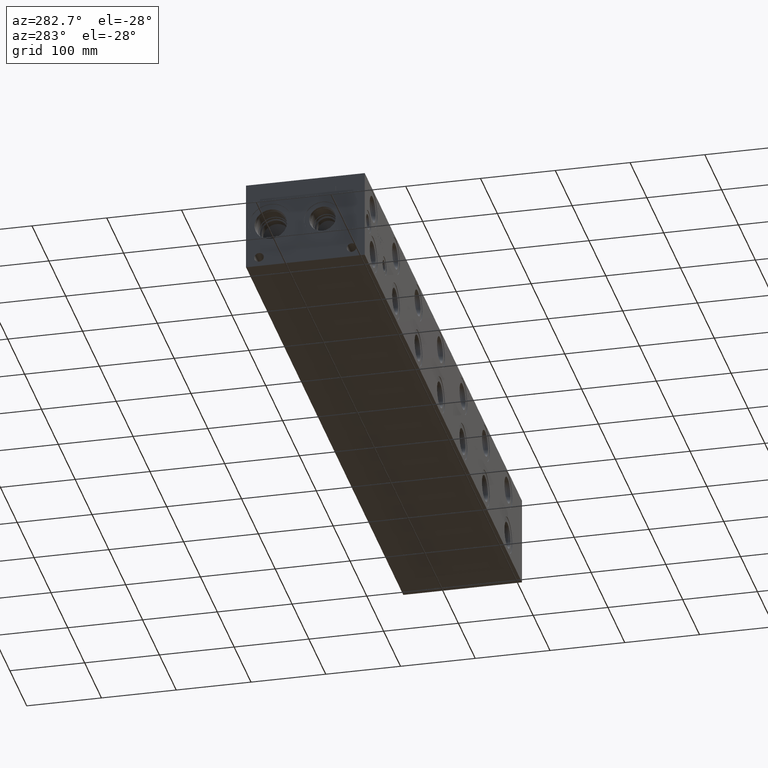
[diagram: clean part render]
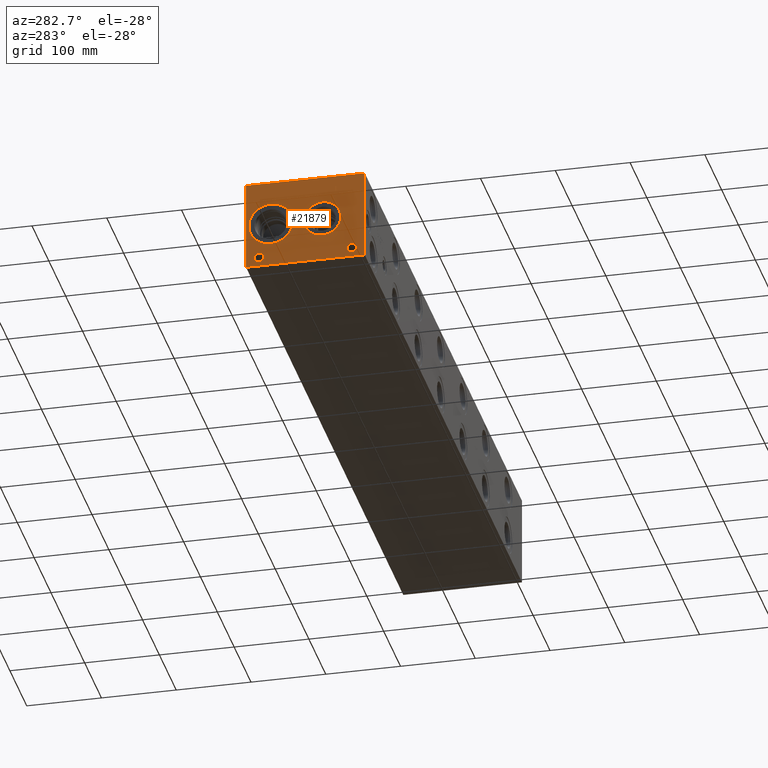
[diagram: same view with one face highlighted and labeled with its STEP entity id]
A machine part, auxiliary view. The second image highlights one B-rep face of the part: STEP entity #21879.
In plain terms, the highlighted planar face has unit normal (-1, 0, 0).
Its self-contained STEP definition (entity closure, byte-faithful):
#480=CIRCLE('',#23113,6.35);
#481=CIRCLE('',#23114,6.35);
#482=CIRCLE('',#23115,6.35);
#483=CIRCLE('',#23116,6.35);
#484=CIRCLE('',#23117,24.5618);
#485=CIRCLE('',#23118,24.5618);
#486=CIRCLE('',#23119,29.2862);
#487=CIRCLE('',#23120,29.2862);
#1406=FACE_BOUND('',#3632,.T.);
#1407=FACE_BOUND('',#3633,.T.);
#1408=FACE_BOUND('',#3634,.T.);
#1409=FACE_BOUND('',#3635,.T.);
#1410=FACE_BOUND('',#3636,.T.);
#1411=FACE_BOUND('',#3637,.T.);
#1695=B_SPLINE_CURVE_WITH_KNOTS('',2,(#31122,#31123,#31124,#31125),
 .UNSPECIFIED.,.F.,.F.,(3,1,3),(0.,1.,2.),.UNSPECIFIED.);
#1697=B_SPLINE_CURVE_WITH_KNOTS('',2,(#31143,#31144,#31145,#31146),
 .UNSPECIFIED.,.F.,.F.,(3,1,3),(0.,1.,2.),.UNSPECIFIED.);
#1699=B_SPLINE_CURVE_WITH_KNOTS('',2,(#31192,#31193,#31194,#31195),
 .UNSPECIFIED.,.F.,.F.,(3,1,3),(0.,1.,2.),.UNSPECIFIED.);
#1701=B_SPLINE_CURVE_WITH_KNOTS('',2,(#31210,#31211,#31212,#31213),
 .UNSPECIFIED.,.F.,.F.,(3,1,3),(0.,1.,2.),.UNSPECIFIED.);
#2396=FACE_OUTER_BOUND('',#3631,.T.);
#3631=EDGE_LOOP('',(#14483,#14484,#14485,#14486));
#3632=EDGE_LOOP('',(#14487,#14488,#14489,#14490,#14491,#14492,#14493,#14494));
#3633=EDGE_LOOP('',(#14495,#14496));
#3634=EDGE_LOOP('',(#14497,#14498));
#3635=EDGE_LOOP('',(#14499,#14500));
#3636=EDGE_LOOP('',(#14501,#14502));
#3637=EDGE_LOOP('',(#14503,#14504,#14505,#14506,#14507,#14508,#14509,#14510,
#14511));
#5130=LINE('',#30972,#6967);
#5134=LINE('',#30980,#6971);
#5137=LINE('',#30986,#6974);
#5140=LINE('',#30992,#6977);
#5143=LINE('',#30998,#6980);
#5146=LINE('',#31004,#6983);
#5149=LINE('',#31010,#6986);
#5152=LINE('',#31015,#6989);
#5170=LINE('',#31155,#7007);
#5173=LINE('',#31161,#7010);
#5176=LINE('',#31167,#7013);
#5179=LINE('',#31173,#7016);
#5182=LINE('',#31179,#7019);
#5186=LINE('',#31222,#7023);
#5187=LINE('',#31224,#7024);
#5188=LINE('',#31226,#7025);
#5189=LINE('',#31227,#7026);
#6967=VECTOR('',#25114,10.);
#6971=VECTOR('',#25120,10.);
#6974=VECTOR('',#25125,10.);
#6977=VECTOR('',#25130,10.);
#6980=VECTOR('',#25135,10.);
#6983=VECTOR('',#25140,10.);
#6986=VECTOR('',#25145,10.);
#6989=VECTOR('',#25150,10.);
#7007=VECTOR('',#25178,10.);
#7010=VECTOR('',#25183,10.);
#7013=VECTOR('',#25188,10.);
#7016=VECTOR('',#25193,10.);
#7019=VECTOR('',#25198,10.);
#7023=VECTOR('',#25206,10.);
#7024=VECTOR('',#25207,10.);
#7025=VECTOR('',#25208,10.);
#7026=VECTOR('',#25209,10.);
#8804=VERTEX_POINT('',#30970);
#8805=VERTEX_POINT('',#30971);
#8808=VERTEX_POINT('',#30979);
#8810=VERTEX_POINT('',#30985);
#8812=VERTEX_POINT('',#30991);
#8814=VERTEX_POINT('',#30997);
#8816=VERTEX_POINT('',#31003);
#8818=VERTEX_POINT('',#31009);
#8834=VERTEX_POINT('',#31120);
#8835=VERTEX_POINT('',#31121);
#8838=VERTEX_POINT('',#31142);
#8840=VERTEX_POINT('',#31154);
#8842=VERTEX_POINT('',#31160);
#8844=VERTEX_POINT('',#31166);
#8846=VERTEX_POINT('',#31172);
#8848=VERTEX_POINT('',#31178);
#8850=VERTEX_POINT('',#31191);
#8852=VERTEX_POINT('',#31220);
#8853=VERTEX_POINT('',#31221);
#8854=VERTEX_POINT('',#31223);
#8855=VERTEX_POINT('',#31225);
#8856=VERTEX_POINT('',#31228);
#8857=VERTEX_POINT('',#31229);
#8858=VERTEX_POINT('',#31232);
#8859=VERTEX_POINT('',#31233);
#8860=VERTEX_POINT('',#31236);
#8861=VERTEX_POINT('',#31237);
#8862=VERTEX_POINT('',#31240);
#8863=VERTEX_POINT('',#31241);
#11087=EDGE_CURVE('',#8804,#8805,#5130,.T.);
#11091=EDGE_CURVE('',#8808,#8804,#5134,.T.);
#11094=EDGE_CURVE('',#8810,#8808,#5137,.T.);
#11097=EDGE_CURVE('',#8812,#8810,#5140,.T.);
#11100=EDGE_CURVE('',#8814,#8812,#5143,.T.);
#11103=EDGE_CURVE('',#8816,#8814,#5146,.T.);
#11106=EDGE_CURVE('',#8818,#8816,#5149,.T.);
#11109=EDGE_CURVE('',#8805,#8818,#5152,.T.);
#11132=EDGE_CURVE('',#8834,#8835,#1695,.T.);
#11136=EDGE_CURVE('',#8838,#8834,#1697,.T.);
#11139=EDGE_CURVE('',#8840,#8838,#5170,.T.);
#11142=EDGE_CURVE('',#8842,#8840,#5173,.T.);
#11145=EDGE_CURVE('',#8844,#8842,#5176,.T.);
#11148=EDGE_CURVE('',#8846,#8844,#5179,.T.);
#11151=EDGE_CURVE('',#8848,#8846,#5182,.T.);
#11154=EDGE_CURVE('',#8850,#8848,#1699,.T.);
#11157=EDGE_CURVE('',#8835,#8850,#1701,.T.);
#11159=EDGE_CURVE('',#8852,#8853,#5186,.T.);
#11160=EDGE_CURVE('',#8853,#8854,#5187,.T.);
#11161=EDGE_CURVE('',#8855,#8854,#5188,.T.);
#11162=EDGE_CURVE('',#8852,#8855,#5189,.T.);
#11163=EDGE_CURVE('',#8856,#8857,#480,.T.);
#11164=EDGE_CURVE('',#8857,#8856,#481,.T.);
#11165=EDGE_CURVE('',#8858,#8859,#482,.T.);
#11166=EDGE_CURVE('',#8859,#8858,#483,.T.);
#11167=EDGE_CURVE('',#8860,#8861,#484,.T.);
#11168=EDGE_CURVE('',#8861,#8860,#485,.T.);
#11169=EDGE_CURVE('',#8862,#8863,#486,.T.);
#11170=EDGE_CURVE('',#8863,#8862,#487,.T.);
#14483=ORIENTED_EDGE('',*,*,#11159,.T.);
#14484=ORIENTED_EDGE('',*,*,#11160,.T.);
#14485=ORIENTED_EDGE('',*,*,#11161,.F.);
#14486=ORIENTED_EDGE('',*,*,#11162,.F.);
#14487=ORIENTED_EDGE('',*,*,#11087,.T.);
#14488=ORIENTED_EDGE('',*,*,#11109,.T.);
#14489=ORIENTED_EDGE('',*,*,#11106,.T.);
#14490=ORIENTED_EDGE('',*,*,#11103,.T.);
#14491=ORIENTED_EDGE('',*,*,#11100,.T.);
#14492=ORIENTED_EDGE('',*,*,#11097,.T.);
#14493=ORIENTED_EDGE('',*,*,#11094,.T.);
#14494=ORIENTED_EDGE('',*,*,#11091,.T.);
#14495=ORIENTED_EDGE('',*,*,#11163,.T.);
#14496=ORIENTED_EDGE('',*,*,#11164,.T.);
#14497=ORIENTED_EDGE('',*,*,#11165,.T.);
#14498=ORIENTED_EDGE('',*,*,#11166,.T.);
#14499=ORIENTED_EDGE('',*,*,#11167,.T.);
#14500=ORIENTED_EDGE('',*,*,#11168,.T.);
#14501=ORIENTED_EDGE('',*,*,#11169,.T.);
#14502=ORIENTED_EDGE('',*,*,#11170,.T.);
#14503=ORIENTED_EDGE('',*,*,#11132,.T.);
#14504=ORIENTED_EDGE('',*,*,#11157,.T.);
#14505=ORIENTED_EDGE('',*,*,#11154,.T.);
#14506=ORIENTED_EDGE('',*,*,#11151,.T.);
#14507=ORIENTED_EDGE('',*,*,#11148,.T.);
#14508=ORIENTED_EDGE('',*,*,#11145,.T.);
#14509=ORIENTED_EDGE('',*,*,#11142,.T.);
#14510=ORIENTED_EDGE('',*,*,#11139,.T.);
#14511=ORIENTED_EDGE('',*,*,#11136,.T.);
#20673=PLANE('',#23112);
#21879=ADVANCED_FACE('',(#2396,#1406,#1407,#1408,#1409,#1410,#1411),#20673,
 .T.);
#23112=AXIS2_PLACEMENT_3D('',#31219,#25204,#25205);
#23113=AXIS2_PLACEMENT_3D('',#31230,#25210,#25211);
#23114=AXIS2_PLACEMENT_3D('',#31231,#25212,#25213);
#23115=AXIS2_PLACEMENT_3D('',#31234,#25214,#25215);
#23116=AXIS2_PLACEMENT_3D('',#31235,#25216,#25217);
#23117=AXIS2_PLACEMENT_3D('',#31238,#25218,#25219);
#23118=AXIS2_PLACEMENT_3D('',#31239,#25220,#25221);
#23119=AXIS2_PLACEMENT_3D('',#31242,#25222,#25223);
#23120=AXIS2_PLACEMENT_3D('',#31243,#25224,#25225);
#25114=DIRECTION('',(0.,1.,0.));
#25120=DIRECTION('',(0.,3.17280044688052E-15,-1.));
#25125=DIRECTION('',(0.,1.,0.));
#25130=DIRECTION('',(0.,0.,-1.));
#25135=DIRECTION('',(0.,-1.,0.));
#25140=DIRECTION('',(0.,0.,1.));
#25145=DIRECTION('',(0.,1.,0.));
#25150=DIRECTION('',(0.,-3.17280044688051E-15,1.));
#25178=DIRECTION('',(0.,-1.,0.));
#25183=DIRECTION('',(0.,-2.79741238752512E-15,1.));
#25188=DIRECTION('',(0.,1.,0.));
#25193=DIRECTION('',(0.,3.75218139805001E-15,-1.));
#25198=DIRECTION('',(0.,1.,0.));
#25204=DIRECTION('center_axis',(-1.,0.,0.));
#25205=DIRECTION('ref_axis',(0.,-1.,0.));
#25206=DIRECTION('',(0.,-1.,0.));
#25207=DIRECTION('',(0.,0.,1.));
#25208=DIRECTION('',(0.,-1.,0.));
#25209=DIRECTION('',(0.,0.,1.));
#25210=DIRECTION('center_axis',(1.,0.,0.));
#25211=DIRECTION('ref_axis',(0.,1.,0.));
#25212=DIRECTION('center_axis',(1.,0.,0.));
#25213=DIRECTION('ref_axis',(0.,1.,0.));
#25214=DIRECTION('center_axis',(1.,0.,0.));
#25215=DIRECTION('ref_axis',(0.,1.,0.));
#25216=DIRECTION('center_axis',(1.,0.,0.));
#25217=DIRECTION('ref_axis',(0.,1.,0.));
#25218=DIRECTION('center_axis',(1.,0.,0.));
#25219=DIRECTION('ref_axis',(0.,0.,1.));
#25220=DIRECTION('center_axis',(1.,0.,0.));
#25221=DIRECTION('ref_axis',(0.,0.,1.));
#25222=DIRECTION('center_axis',(1.,0.,0.));
#25223=DIRECTION('ref_axis',(0.,0.,1.));
#25224=DIRECTION('center_axis',(1.,0.,0.));
#25225=DIRECTION('ref_axis',(0.,0.,1.));
#30970=CARTESIAN_POINT('',(0.,139.880434728547,99.187));
#30971=CARTESIAN_POINT('',(0.,140.724356920087,99.187));
#30972=CARTESIAN_POINT('',(0.,149.315217364274,99.187));
#30979=CARTESIAN_POINT('',(0.,139.880434728547,104.785703319482));
#30980=CARTESIAN_POINT('',(0.,139.880434728547,52.3928516597407));
#30985=CARTESIAN_POINT('',(0.,137.750045781612,104.785703319482));
#30986=CARTESIAN_POINT('',(0.,148.250022890806,104.785703319482));
#30991=CARTESIAN_POINT('',(0.,137.750045781612,105.536999904633));
#30992=CARTESIAN_POINT('',(0.,137.750045781612,52.7684999523163));
#30997=CARTESIAN_POINT('',(0.,142.854745867022,105.536999904633));
#30998=CARTESIAN_POINT('',(0.,150.802372933511,105.536999904633));
#31003=CARTESIAN_POINT('',(0.,142.854745867022,104.785703319482));
#31004=CARTESIAN_POINT('',(0.,142.854745867022,52.3928516597408));
#31009=CARTESIAN_POINT('',(0.,140.724356920087,104.785703319482));
#31010=CARTESIAN_POINT('',(0.,149.737178460043,104.785703319482));
#31015=CARTESIAN_POINT('',(0.,140.724356920087,49.5935));
#31120=CARTESIAN_POINT('',(0.,35.5710327976406,105.140768143971));
#31121=CARTESIAN_POINT('',(0.,34.814590345468,103.622737372604));
#31122=CARTESIAN_POINT('Ctrl Pts',(0.,35.5710327976406,105.140768143971));
#31123=CARTESIAN_POINT('Ctrl Pts',(0.,35.2159679731514,104.898912393956));
#31124=CARTESIAN_POINT('Ctrl Pts',(0.,34.814590345468,104.152761675827));
#31125=CARTESIAN_POINT('Ctrl Pts',(0.,34.814590345468,103.622737372604));
#31142=CARTESIAN_POINT('',(0.,37.2331478456117,105.536999904633));
#31143=CARTESIAN_POINT('Ctrl Pts',(0.,37.2331478456117,105.536999904633));
#31144=CARTESIAN_POINT('Ctrl Pts',(0.,36.6671024732376,105.536999904633));
#31145=CARTESIAN_POINT('Ctrl Pts',(0.,35.874638951914,105.351748691856));
#31146=CARTESIAN_POINT('Ctrl Pts',(0.,35.5710327976406,105.140768143971));
#31154=CARTESIAN_POINT('',(0.,38.8283666223022,105.536999904633));
#31155=CARTESIAN_POINT('',(0.,98.7891833111511,105.536999904633));
#31160=CARTESIAN_POINT('',(0.,38.8283666223022,99.187));
#31161=CARTESIAN_POINT('',(0.,38.8283666223024,49.5934999999998));
#31166=CARTESIAN_POINT('',(0.,37.9844444307627,99.187));
#31167=CARTESIAN_POINT('',(0.,98.3672222153814,99.187));
#31172=CARTESIAN_POINT('',(0.,37.9844444307627,101.554098829928));
#31173=CARTESIAN_POINT('',(0.,37.9844444307629,50.7770494149637));
#31178=CARTESIAN_POINT('',(0.,37.2691689147628,101.554098829928));
#31179=CARTESIAN_POINT('',(0.,98.0095844573814,101.554098829928));
#31191=CARTESIAN_POINT('',(0.,35.3703439837989,102.21276980869));
#31192=CARTESIAN_POINT('Ctrl Pts',(0.,35.3703439837989,102.21276980869));
#31193=CARTESIAN_POINT('Ctrl Pts',(0.,35.6996794731802,101.888580186331));
#31194=CARTESIAN_POINT('Ctrl Pts',(0.,36.5899144679139,101.554098829928));
#31195=CARTESIAN_POINT('Ctrl Pts',(0.,37.2691689147628,101.554098829928));
#31210=CARTESIAN_POINT('Ctrl Pts',(0.,34.814590345468,103.622737372604));
#31211=CARTESIAN_POINT('Ctrl Pts',(0.,34.814590345468,103.211068010877));
#31212=CARTESIAN_POINT('Ctrl Pts',(0.,35.1079047656982,102.47006315977));
#31213=CARTESIAN_POINT('Ctrl Pts',(0.,35.3703439837989,102.21276980869));
#31219=CARTESIAN_POINT('Origin',(0.,158.75,0.));
#31220=CARTESIAN_POINT('',(0.,158.75,0.));
#31221=CARTESIAN_POINT('',(0.,0.,0.));
#31222=CARTESIAN_POINT('',(0.,158.75,0.));
#31223=CARTESIAN_POINT('',(0.,0.,120.65));
#31224=CARTESIAN_POINT('',(0.,0.,0.));
#31225=CARTESIAN_POINT('',(0.,158.75,120.65));
#31226=CARTESIAN_POINT('',(0.,158.75,120.65));
#31227=CARTESIAN_POINT('',(0.,158.75,0.));
#31228=CARTESIAN_POINT('',(0.,23.8252,12.7));
#31229=CARTESIAN_POINT('',(0.,11.1252,12.7));
#31230=CARTESIAN_POINT('Origin',(0.,17.4752,12.7));
#31231=CARTESIAN_POINT('Origin',(0.,17.4752,12.7));
#31232=CARTESIAN_POINT('',(0.,147.6502,12.7));
#31233=CARTESIAN_POINT('',(0.,134.9502,12.7));
#31234=CARTESIAN_POINT('Origin',(0.,141.3002,12.7));
#31235=CARTESIAN_POINT('Origin',(0.,141.3002,12.7));
#31236=CARTESIAN_POINT('',(0.,56.4896,84.8868));
#31237=CARTESIAN_POINT('',(6.93889390390723E-17,56.4896,35.7632));
#31238=CARTESIAN_POINT('Origin',(0.,56.4896,60.325));
#31239=CARTESIAN_POINT('Origin',(0.,56.4896,60.325));
#31240=CARTESIAN_POINT('',(0.,125.8316,89.6112));
#31241=CARTESIAN_POINT('',(0.,125.8316,31.0388));
#31242=CARTESIAN_POINT('Origin',(0.,125.8316,60.325));
#31243=CARTESIAN_POINT('Origin',(0.,125.8316,60.325));